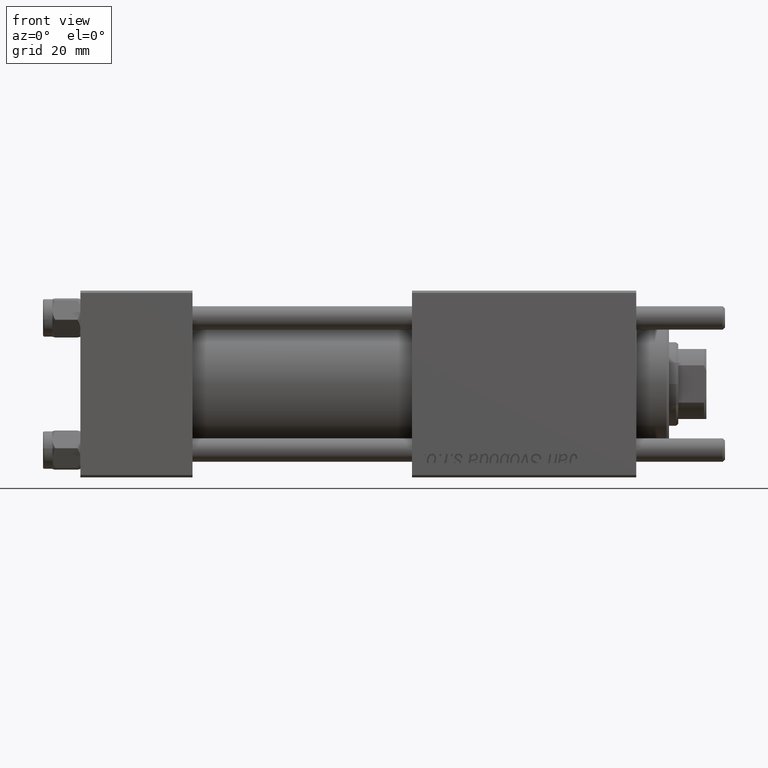
[diagram: clean part render]
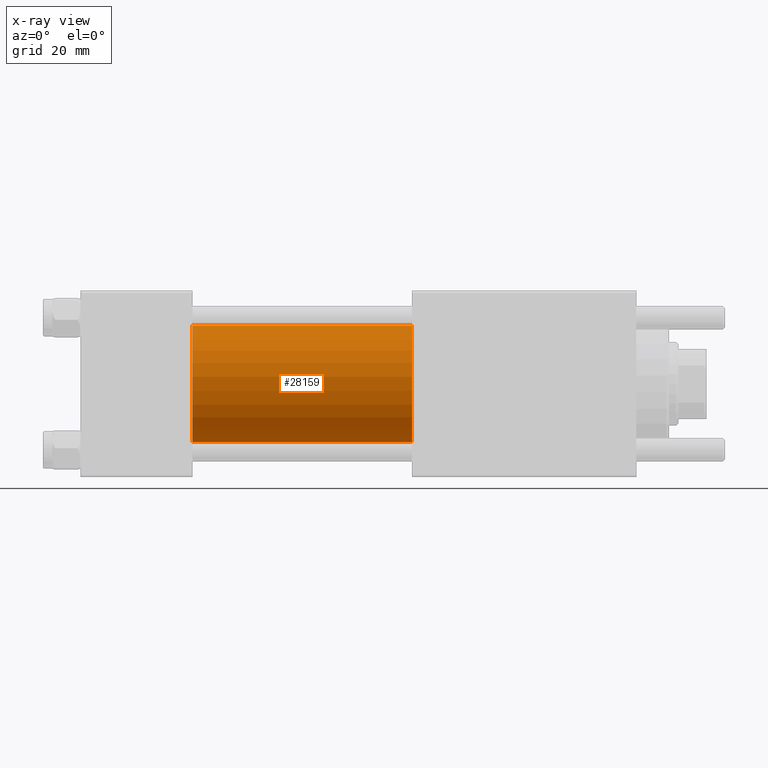
[diagram: x-ray — body ghosted, one internal face saturated and labeled with its STEP entity id]
A machine part, front view, then the same camera in x-ray: the body is ghosted and one INTERNAL B-rep face — a face not visible from any outside direction — is saturated and labeled: STEP entity #28159.
In plain terms, the highlighted cylindrical surface (partial cylindrical patch) has radius 12.5 mm, axis along (-1, -0, -0).
Its self-contained STEP definition (entity closure, byte-faithful):
#2833 = DIRECTION ( 'NONE',  ( -1.000000000000000000, -0.000000000000000000, -0.000000000000000000 ) ) ;
#2980 = VERTEX_POINT ( 'NONE', #51997 ) ;
#3406 = CARTESIAN_POINT ( 'NONE',  ( 71.00000000000001421, -2.602085213965210642E-15, 12.49999999999999645 ) ) ;
#6695 = CARTESIAN_POINT ( 'NONE',  ( 71.00000000000001421, -2.602085213965210642E-15, 12.49999999999999645 ) ) ;
#7159 = CARTESIAN_POINT ( 'NONE',  ( 24.00000000000000000, -1.071276715031019515E-15, -12.49999999999999645 ) ) ;
#7949 = FACE_OUTER_BOUND ( 'NONE', #21438, .T. ) ;
#8776 = VERTEX_POINT ( 'NONE', #10112 ) ;
#10112 = CARTESIAN_POINT ( 'NONE',  ( 71.00000000000001421, -1.071276715031019515E-15, -12.49999999999999645 ) ) ;
#11540 = ORIENTED_EDGE ( 'NONE', *, *, #37841, .T. ) ;
#11981 = DIRECTION ( 'NONE',  ( 1.000000000000000000, 0.000000000000000000, 0.000000000000000000 ) ) ;
#15780 = VECTOR ( 'NONE', #2833, 1000.000000000000000 ) ;
#16223 = EDGE_CURVE ( 'NONE', #38089, #2980, #46689, .T. ) ;
#16534 = DIRECTION ( 'NONE',  ( 0.000000000000000000, 0.000000000000000000, 1.000000000000000000 ) ) ;
#19675 = ORIENTED_EDGE ( 'NONE', *, *, #25081, .F. ) ;
#20293 = CARTESIAN_POINT ( 'NONE',  ( 71.00000000000001421, -2.602085213965210642E-15, 0.000000000000000000 ) ) ;
#21438 = EDGE_LOOP ( 'NONE', ( #11540, #36376, #19675, #37310 ) ) ;
#21461 = LINE ( 'NONE', #34650, #39001 ) ;
#24845 = CYLINDRICAL_SURFACE ( 'NONE', #28779, 12.49999999999999645 ) ;
#25081 = EDGE_CURVE ( 'NONE', #2980, #53362, #36966, .T. ) ;
#28159 = ADVANCED_FACE ( 'NONE', ( #7949 ), #24845, .F. ) ;
#28779 = AXIS2_PLACEMENT_3D ( 'NONE', #51506, #34589, #16534 ) ;
#30885 = CIRCLE ( 'NONE', #46492, 12.49999999999999645 ) ;
#33191 = DIRECTION ( 'NONE',  ( 0.000000000000000000, 0.000000000000000000, -1.000000000000000000 ) ) ;
#34589 = DIRECTION ( 'NONE',  ( -1.000000000000000000, -0.000000000000000000, -0.000000000000000000 ) ) ;
#34650 = CARTESIAN_POINT ( 'NONE',  ( 71.00000000000001421, -1.071276715031019515E-15, -12.49999999999999645 ) ) ;
#36376 = ORIENTED_EDGE ( 'NONE', *, *, #46537, .T. ) ;
#36966 = CIRCLE ( 'NONE', #37884, 12.49999999999999645 ) ;
#37310 = ORIENTED_EDGE ( 'NONE', *, *, #16223, .F. ) ;
#37841 = EDGE_CURVE ( 'NONE', #38089, #8776, #30885, .T. ) ;
#37884 = AXIS2_PLACEMENT_3D ( 'NONE', #43214, #52939, #56402 ) ;
#38089 = VERTEX_POINT ( 'NONE', #6695 ) ;
#38960 = DIRECTION ( 'NONE',  ( -1.000000000000000000, -0.000000000000000000, -0.000000000000000000 ) ) ;
#39001 = VECTOR ( 'NONE', #38960, 1000.000000000000000 ) ;
#43214 = CARTESIAN_POINT ( 'NONE',  ( 24.00000000000000000, -2.602085213965210642E-15, 0.000000000000000000 ) ) ;
#46492 = AXIS2_PLACEMENT_3D ( 'NONE', #20293, #11981, #33191 ) ;
#46537 = EDGE_CURVE ( 'NONE', #8776, #53362, #21461, .T. ) ;
#46689 = LINE ( 'NONE', #3406, #15780 ) ;
#51506 = CARTESIAN_POINT ( 'NONE',  ( 71.00000000000001421, -2.602085213965210642E-15, 0.000000000000000000 ) ) ;
#51997 = CARTESIAN_POINT ( 'NONE',  ( 24.00000000000000000, -2.602085213965210642E-15, 12.49999999999999645 ) ) ;
#52939 = DIRECTION ( 'NONE',  ( 1.000000000000000000, 0.000000000000000000, 0.000000000000000000 ) ) ;
#53362 = VERTEX_POINT ( 'NONE', #7159 ) ;
#56402 = DIRECTION ( 'NONE',  ( 0.000000000000000000, 0.000000000000000000, -1.000000000000000000 ) ) ;